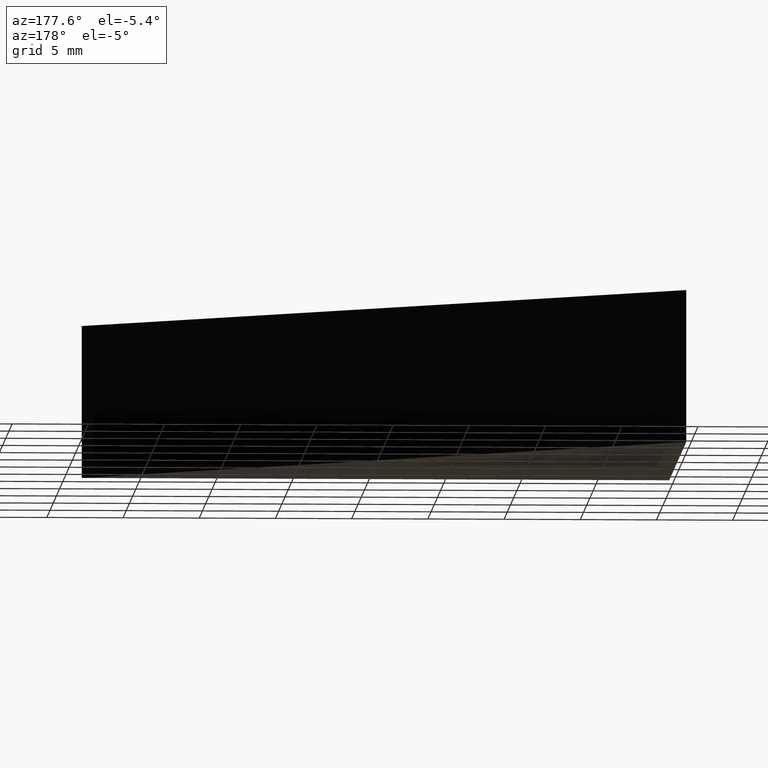
[diagram: clean part render]
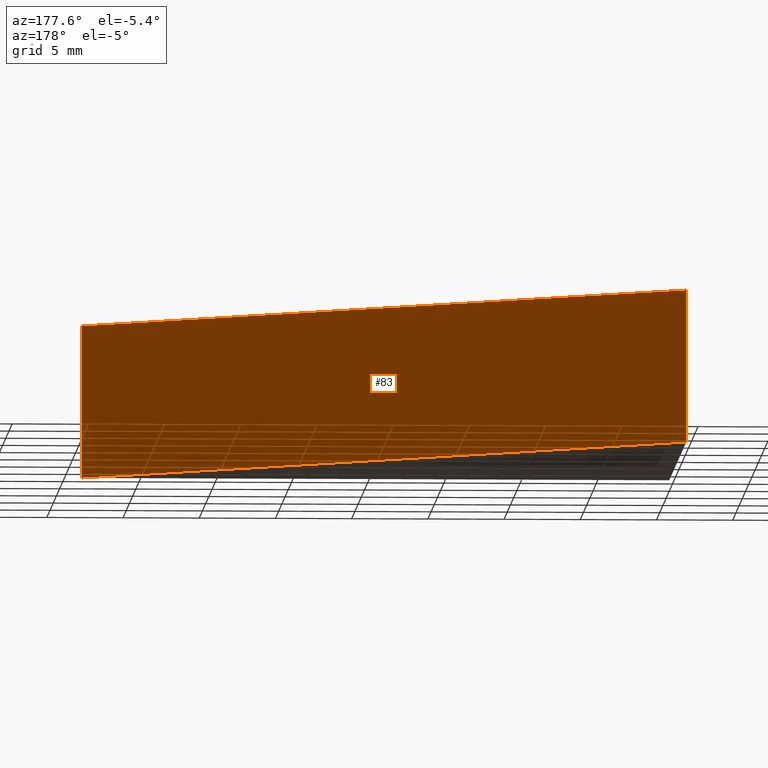
[diagram: same view with one face highlighted and labeled with its STEP entity id]
A machine part, auxiliary view. The second image highlights one B-rep face of the part: STEP entity #83.
In plain terms, the highlighted planar face has unit normal (0.5694, 0.8221, 0).
Its self-contained STEP definition (entity closure, byte-faithful):
#17=FACE_OUTER_BOUND('',#22,.T.);
#22=EDGE_LOOP('',(#65,#66,#67,#68));
#25=LINE('',#139,#34);
#29=LINE('',#147,#38);
#31=LINE('',#151,#40);
#32=LINE('',#152,#41);
#34=VECTOR('',#118,10.);
#38=VECTOR('',#124,10.);
#40=VECTOR('',#128,10.);
#41=VECTOR('',#129,10.);
#43=VERTEX_POINT('',#137);
#44=VERTEX_POINT('',#138);
#47=VERTEX_POINT('',#145);
#48=VERTEX_POINT('',#150);
#49=EDGE_CURVE('',#43,#44,#25,.T.);
#53=EDGE_CURVE('',#47,#44,#29,.T.);
#55=EDGE_CURVE('',#47,#48,#31,.T.);
#56=EDGE_CURVE('',#43,#48,#32,.T.);
#65=ORIENTED_EDGE('',*,*,#55,.T.);
#66=ORIENTED_EDGE('',*,*,#56,.F.);
#67=ORIENTED_EDGE('',*,*,#49,.T.);
#68=ORIENTED_EDGE('',*,*,#53,.F.);
#78=PLANE('',#111);
#83=ADVANCED_FACE('',(#17),#78,.T.);
#111=AXIS2_PLACEMENT_3D('',#149,#126,#127);
#118=DIRECTION('',(-0.822077020060832,0.569376301832016,0.));
#124=DIRECTION('',(0.,0.,-1.));
#126=DIRECTION('center_axis',(0.569376301832016,0.822077020060832,0.));
#127=DIRECTION('ref_axis',(0.,0.,-1.));
#128=DIRECTION('',(0.822077020060832,-0.569376301832016,0.));
#129=DIRECTION('',(0.,0.,1.));
#137=CARTESIAN_POINT('',(38.55,4.44089209850063E-15,-5.));
#138=CARTESIAN_POINT('',(-3.33066907387547E-15,26.7,-5.));
#139=CARTESIAN_POINT('',(-3.33066907387547E-15,26.7,-5.));
#145=CARTESIAN_POINT('',(-3.33066907387547E-15,26.7,5.));
#147=CARTESIAN_POINT('',(-3.33066907387547E-15,26.7,0.));
#149=CARTESIAN_POINT('Origin',(-3.33066907387547E-15,26.7,0.));
#150=CARTESIAN_POINT('',(38.55,4.44089209850063E-15,5.));
#151=CARTESIAN_POINT('',(-3.33066907387547E-15,26.7,5.));
#152=CARTESIAN_POINT('',(38.55,4.44089209850063E-15,0.));